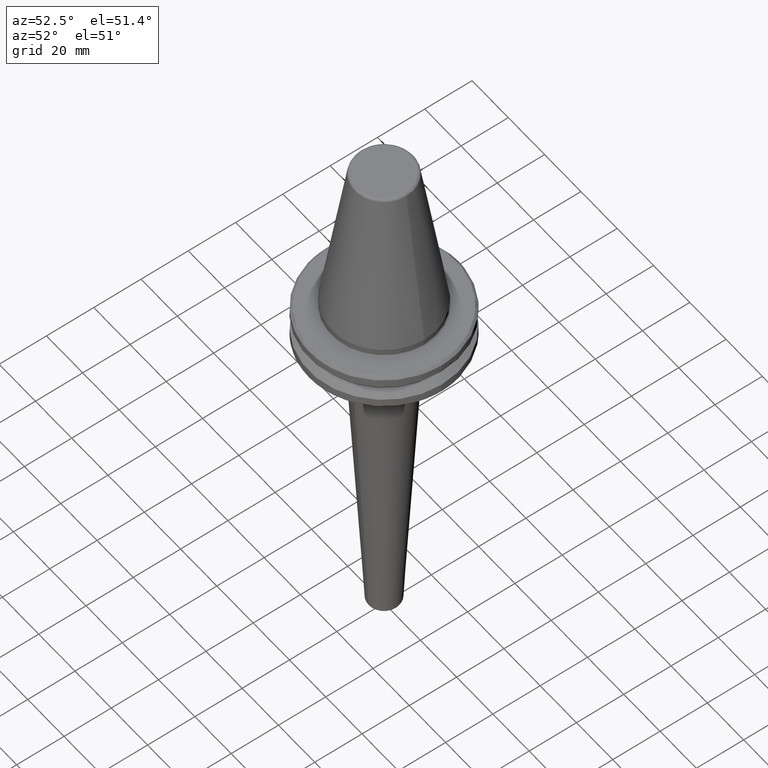
[diagram: clean part render]
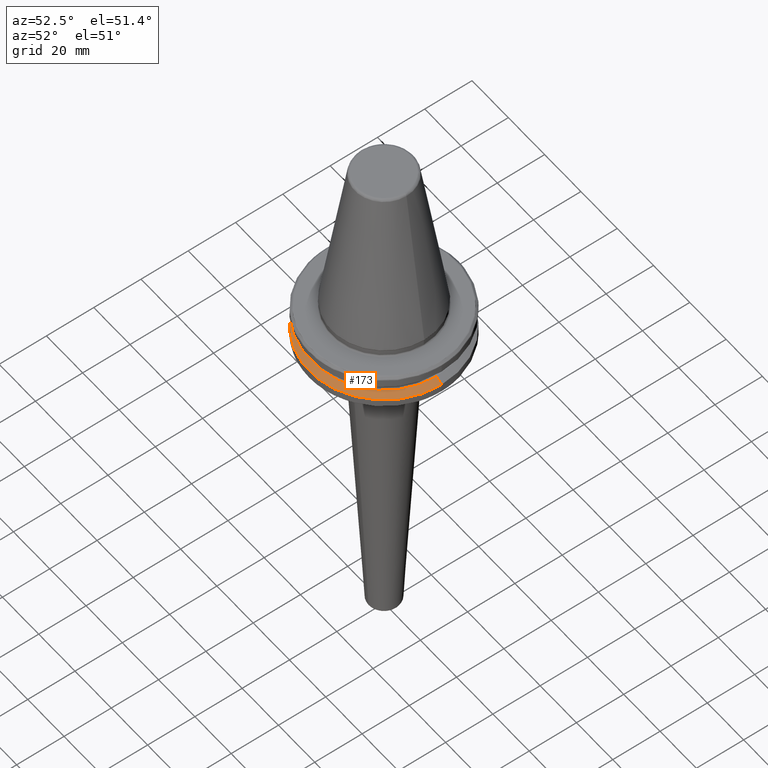
[diagram: same view with one face highlighted and labeled with its STEP entity id]
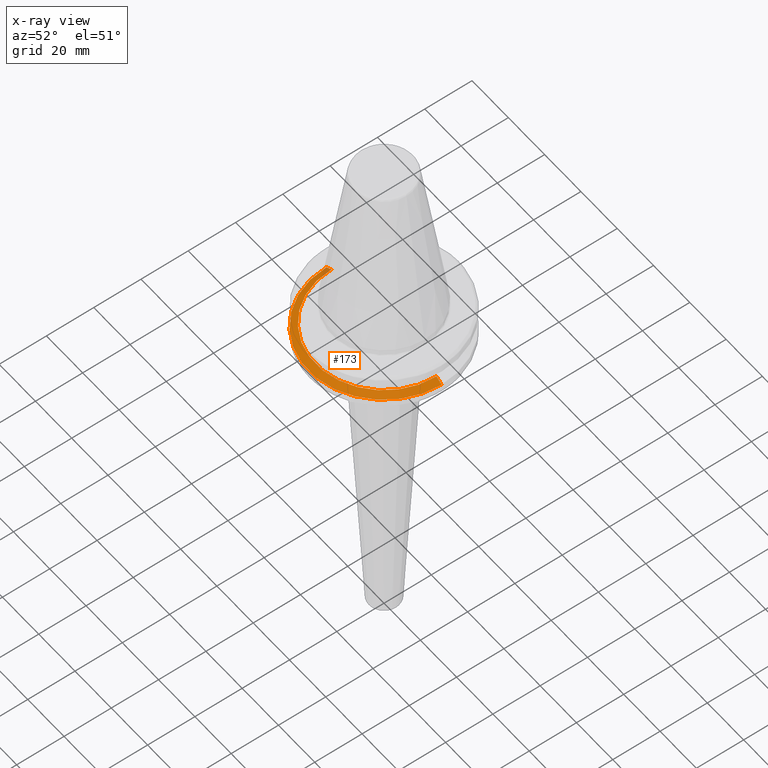
[diagram: x-ray of the same camera — body ghosted, the highlighted face saturated]
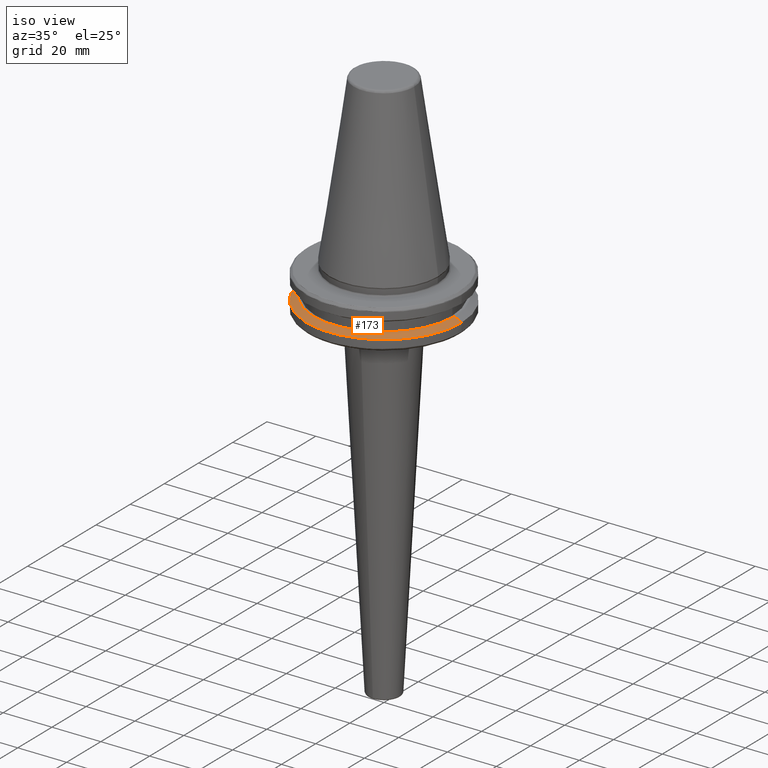
[diagram: same view with one face highlighted and labeled with its STEP entity id]
A machine part, auxiliary view. The second image highlights one B-rep face of the part: STEP entity #173.
The next image is the same camera in x-ray: the body ghosted, the highlighted face saturated — about 2% of this face is hidden behind the body in this view.
A second angle (iso view) of the same face is appended — the face is thin or edge-on in the first view.
In plain terms, the highlighted conical surface has half-angle 60 deg.
Its self-contained STEP definition (entity closure, byte-faithful):
#118 = EDGE_LOOP ( 'NONE', ( #500, #1862, #633, #2564 ) ) ;
#129 = CIRCLE ( 'NONE', #1540, 31.75000000000000000 ) ;
#149 = VERTEX_POINT ( 'NONE', #598 ) ;
#173 = ADVANCED_FACE ( 'NONE', ( #2102 ), #2482, .T. ) ;
#299 = VERTEX_POINT ( 'NONE', #2092 ) ;
#351 = EDGE_CURVE ( 'NONE', #149, #299, #2835, .T. ) ;
#391 = CARTESIAN_POINT ( 'NONE',  ( 0.0000000000000000000, 0.0000000000000000000, -14.62183664205671200 ) ) ;
#416 = DIRECTION ( 'NONE',  ( -1.000000000000000000, 0.0000000000000000000, -5.463695987328526400E-017 ) ) ;
#500 = ORIENTED_EDGE ( 'NONE', *, *, #919, .F. ) ;
#598 = CARTESIAN_POINT ( 'NONE',  ( -28.94089653438085100, 0.0000000000000000000, -13.00000000000001100 ) ) ;
#633 = ORIENTED_EDGE ( 'NONE', *, *, #351, .T. ) ;
#698 = EDGE_CURVE ( 'NONE', #299, #2996, #129, .T. ) ;
#830 = VERTEX_POINT ( 'NONE', #1330 ) ;
#915 = DIRECTION ( 'NONE',  ( -0.0000000000000000000, -0.0000000000000000000, 1.000000000000000000 ) ) ;
#919 = EDGE_CURVE ( 'NONE', #830, #2996, #982, .T. ) ;
#957 = CARTESIAN_POINT ( 'NONE',  ( 31.75000000000000000, 0.0000000000000000000, -14.62183664205671200 ) ) ;
#982 = LINE ( 'NONE', #2593, #1778 ) ;
#1184 = CARTESIAN_POINT ( 'NONE',  ( -31.75000000000000000, 0.0000000000000000000, -14.62183664205671200 ) ) ;
#1279 = CARTESIAN_POINT ( 'NONE',  ( 0.0000000000000000000, 0.0000000000000000000, -14.62183664205671200 ) ) ;
#1330 = CARTESIAN_POINT ( 'NONE',  ( 28.94089653438085100, 3.716245608910635500E-015, -13.00000000000001100 ) ) ;
#1336 = DIRECTION ( 'NONE',  ( 0.0000000000000000000, 0.0000000000000000000, -1.000000000000000000 ) ) ;
#1355 = DIRECTION ( 'NONE',  ( 0.0000000000000000000, 0.0000000000000000000, -1.000000000000000000 ) ) ;
#1540 = AXIS2_PLACEMENT_3D ( 'NONE', #391, #915, #416 ) ;
#1778 = VECTOR ( 'NONE', #2394, 999.9999999999998900 ) ;
#1862 = ORIENTED_EDGE ( 'NONE', *, *, #2757, .T. ) ;
#1977 = AXIS2_PLACEMENT_3D ( 'NONE', #2705, #1336, #2942 ) ;
#2092 = CARTESIAN_POINT ( 'NONE',  ( -31.75000000000000000, 3.888253587292846500E-015, -14.62183664205671200 ) ) ;
#2102 = FACE_OUTER_BOUND ( 'NONE', #118, .T. ) ;
#2394 = DIRECTION ( 'NONE',  ( 0.8660254037844420400, 1.060575238724911000E-016, -0.4999999999999943900 ) ) ;
#2482 = CONICAL_SURFACE ( 'NONE', #2683, 31.75000000000000000, 1.047197551196604300 ) ;
#2564 = ORIENTED_EDGE ( 'NONE', *, *, #698, .T. ) ;
#2593 = CARTESIAN_POINT ( 'NONE',  ( 31.75000000000000000, 3.888253587292846500E-015, -14.62183664205671200 ) ) ;
#2618 = VECTOR ( 'NONE', #2986, 999.9999999999998900 ) ;
#2683 = AXIS2_PLACEMENT_3D ( 'NONE', #1279, #1355, #2687 ) ;
#2687 = DIRECTION ( 'NONE',  ( -1.000000000000000000, 0.0000000000000000000, 0.0000000000000000000 ) ) ;
#2705 = CARTESIAN_POINT ( 'NONE',  ( 0.0000000000000000000, 0.0000000000000000000, -13.00000000000001100 ) ) ;
#2757 = EDGE_CURVE ( 'NONE', #830, #149, #2973, .T. ) ;
#2835 = LINE ( 'NONE', #1184, #2618 ) ;
#2942 = DIRECTION ( 'NONE',  ( -1.000000000000000000, 0.0000000000000000000, 0.0000000000000000000 ) ) ;
#2973 = CIRCLE ( 'NONE', #1977, 28.94089653438085100 ) ;
#2986 = DIRECTION ( 'NONE',  ( -0.8660254037844420400, 0.0000000000000000000, -0.4999999999999943900 ) ) ;
#2996 = VERTEX_POINT ( 'NONE', #957 ) ;